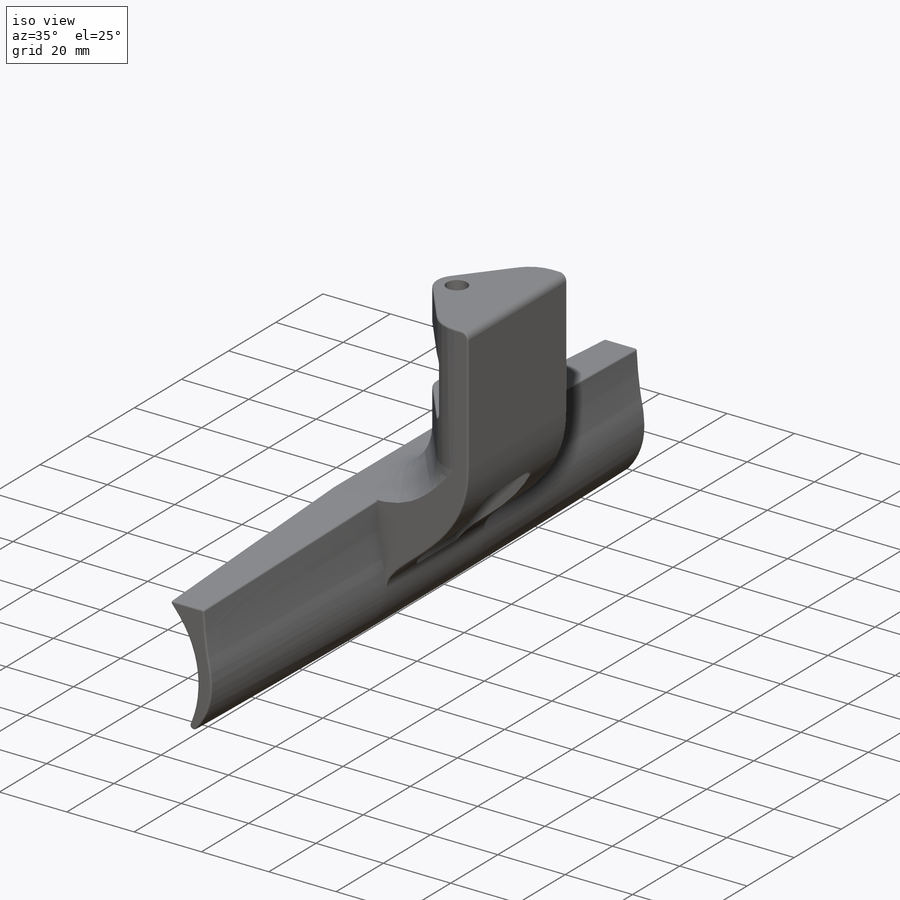
[diagram: iso view]
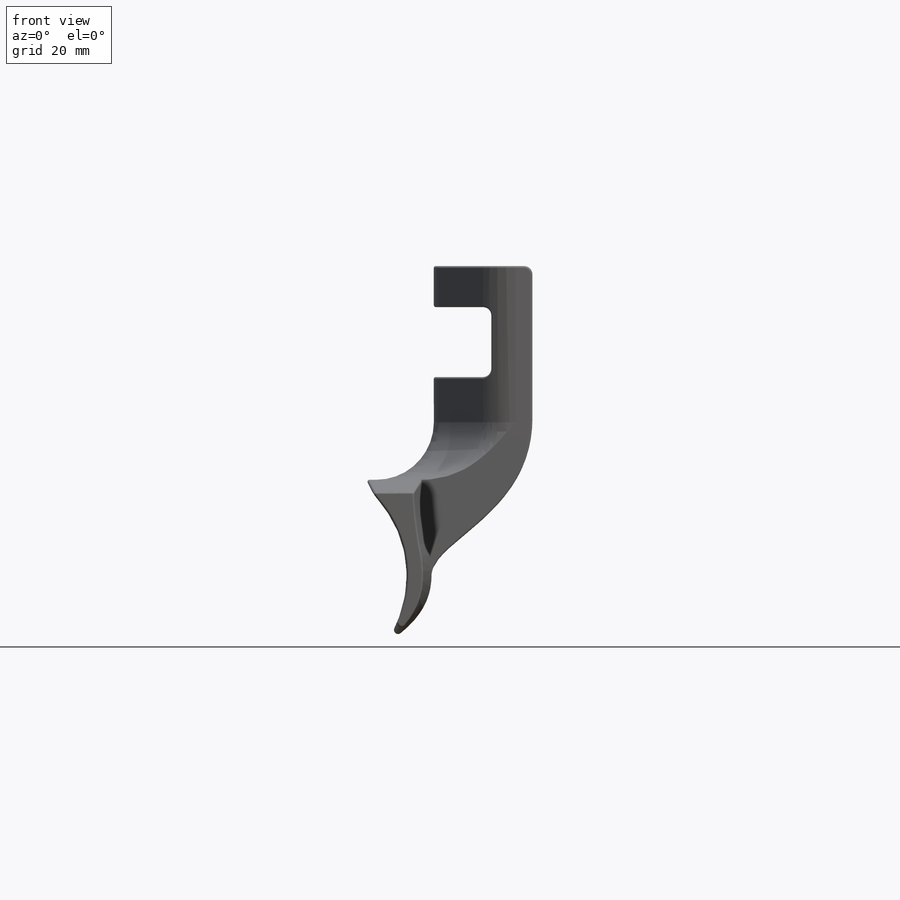
[diagram: front view]
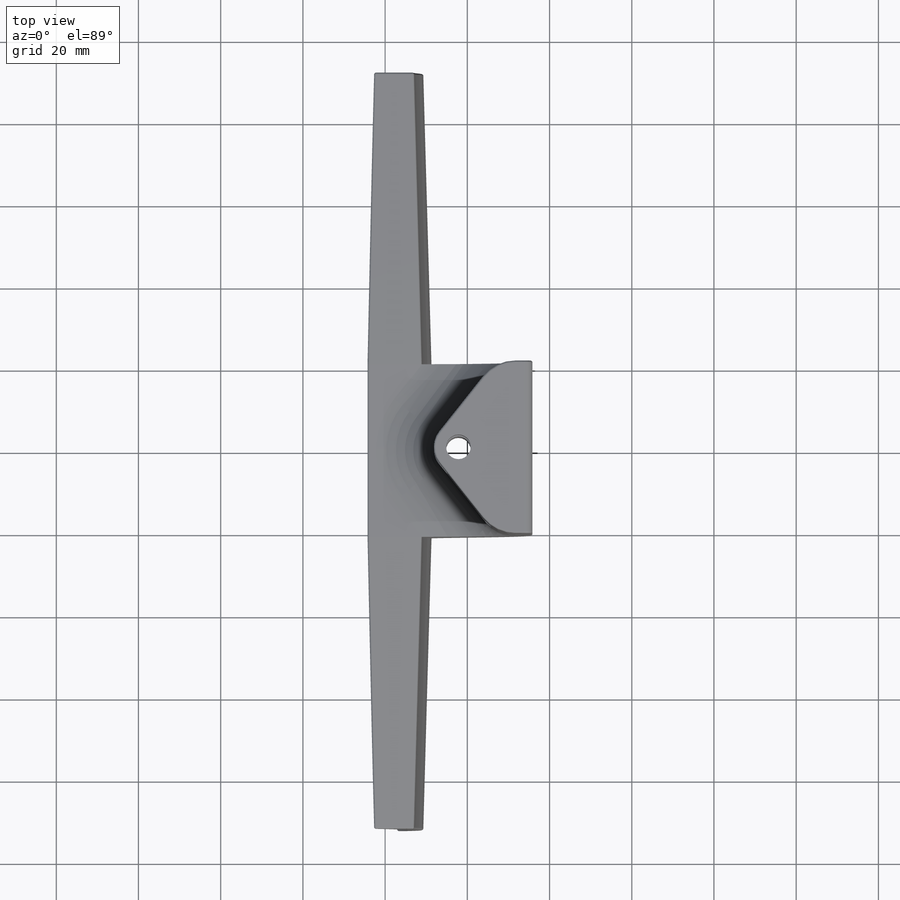
[diagram: top view]
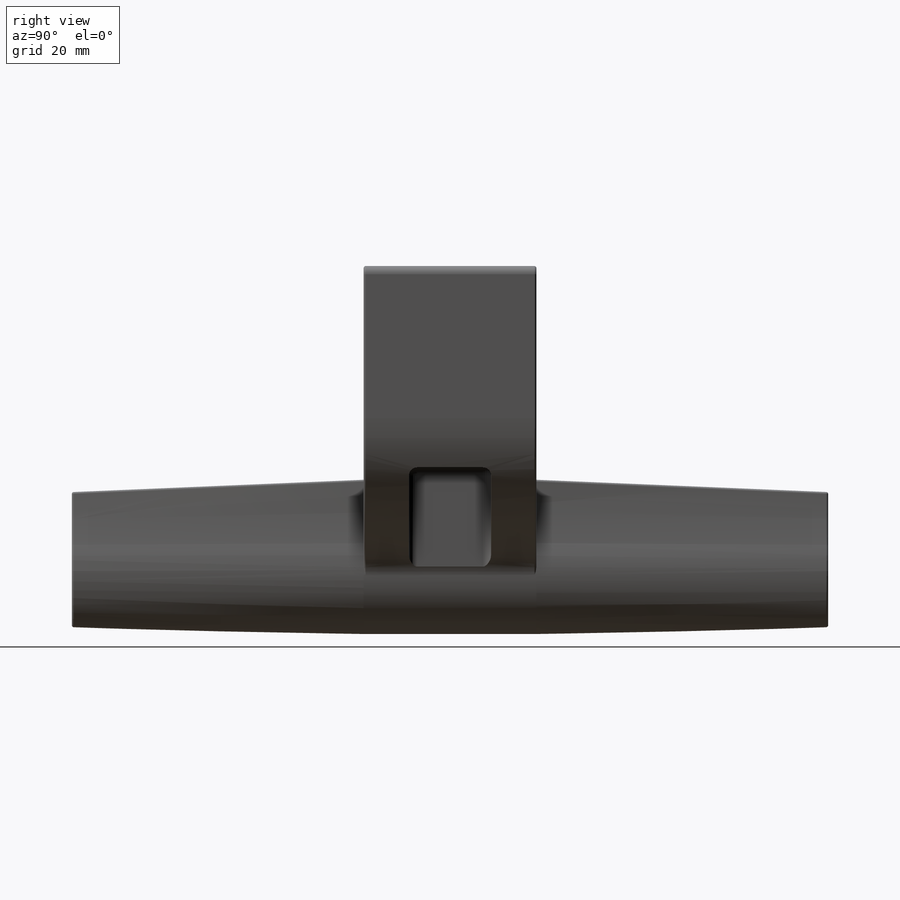
[diagram: right view]
SOLIDWORKS PART (.sldprt)
format: sldprt  version: not decoded by parser v0  size: 677,888 bytes
history: native  units: mm
features: fillet x7, sketch x6, plane x5, cut_extrude x3, material x1, extrude x1, mirror x1 (+8 scaffold rows collapsed)
feature tree (32):
  scaffold x8  (default folders/planes/origin — collapsed)
  material  "PA 2200 Balance 1.0"
  plane  "Alzado"
  plane  "Planta"
  plane  "Vista lateral"
  sketch  "Croquis1"  dims[c1.D1=~7.367242mm c1.D2=100.0mm c1.D3=~26.426037mm c2.D2=30.0mm c2.D3=30.0mm c2.D4=30.0mm c2.D5=30.0mm c2.D6=~7.016402mm c2.D1=~121.560354mm c2.D7=14.0mm c2.D8=20.0mm c2.D9=30.0mm c3.D3=30.0mm c3.D2=30.0mm c4.D3=20.0mm c4.D5=7.0mm c4.D9=30.0mm c4.D2=20.0mm c4.D4=28.0mm c5.D9=8.0mm c5.D10=28.0mm c5.D11=10.0mm c5.D2=~15.403283mm c5.D1=50.0mm c6.D2=50.0mm c6.D6=35.0mm c6.D1=~34.999935mm c7.D6=55.0mm c7.D1=25.0mm c7.D10=6.0mm c7.D7=40.0mm c7.D2=47.0mm c7.D3=9.0mm c8.D2=11.0mm c8.D3=47.0mm c9.D2=11.0mm c9.D3=47.0mm c9.D5=17.0mm c10.D3=65.0mm c10.D6=4.0mm c10.D8=10.0mm c10.D9=25.0mm c10.D1=6.0mm c10.D2=4.0mm c11.D3=4.0mm]
  extrude  "Saliente-Extruir1"  Depth=21mm
  plane  "Plano2"  Offset=21mm
  plane  "Plano3"  Offset=92mm
  sketch  "Croquis4"  dims[D1=4.0mm]
  sketch  "Croquis5"  dims[D1=1.0mm D2=2.0mm]
  mirror  "Simetría5"
  sketch  "Croquis7"  dims[c1.D1=6.0mm c1.D7=10.0mm c1.D8=10.0mm c1.D3=6.0mm c1.D2=12.0mm c2.D7=10.0mm c2.D8=10.0mm c2.D2=7.0mm c2.D3=~13.81213mm c3.D3=90.0deg c4.D3=21.0mm c4.D4=21.0mm c4.D5=8.0mm c4.D6=8.0mm c4.D2=7.0mm c4.D9=12.0mm c5.D2=12.0mm c5.D4=42.0mm c6.D2=21.0mm c6.D3=21.0mm c6.D4=21.0mm c6.D5=9.0mm c6.D6=9.0mm]
  cut_extrude  "Cortar-Extruir1"  [1 undecoded]
  cut_extrude  "Cortar-Extruir2"  [1 undecoded]
  sketch  "Croquis7<3>"  dims[D1=52.0mm]
  fillet  "Redondeo4"  Radius=2mm
  sketch  "Croquis8"  dims[c1.D1=40.0mm c1.D2=~16.542434mm c2.D2=90.0deg c3.D2=20.0mm c3.D3=10.0mm c3.D4=30.0mm c3.D1=22.0mm]
  fillet  "Redondeo19"  Radius=14mm
  cut_extrude  "Cortar-Extruir3"  Depth=24mm
  fillet  "Redondeo9"  Radius=2mm
  fillet  "Redondeo12"  Radius=0.5mm
  fillet  "Redondeo13"  Radius=1mm
  fillet  "Redondeo11"  Radius=0.5mm
  fillet  "Redondeo23"  Radius=0.5mm
decode coverage: 15 of 18 modeling features carry decoded parameters
note: ~ marks probable driven/reference dimensions
note: 2 parameter values undecoded
note: suppression state not decoded; provenance and decode notes live in map.json
